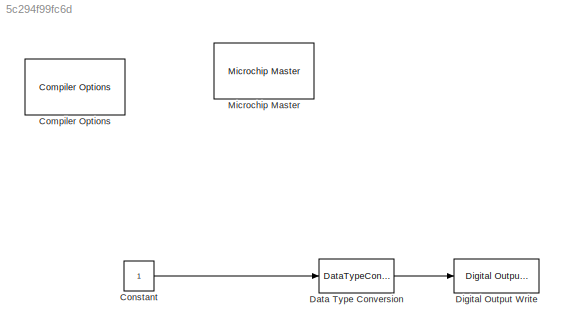
MODEL slx_5c294f99fc6d
KIND model
CONFIG AbsTol = auto
CONFIG EnableMultiTasking = off
CONFIG FixedStep = 0.001
CONFIG MaxStep = auto
CONFIG MinStep = auto
CONFIG RelTol = 1e-3
CONFIG SampleTimeConstraint = Unconstrained
CONFIG SolverName = FixedStepDiscrete
CONFIG StartTime = 0.0
CONFIG StopTime = 10.0
BLOCK [Reference] Compiler Options  REF=MCHP_Blockset/System Configuration/Compiler Options
  Priority = 1
  SourceBlock = MCHP_Blockset/System Configuration/Compiler Options
  SourceProductName = MPLAB Device Blocks for Simulink
BLOCK [Constant] Constant
  SampleTime = 0.001
BLOCK [DataTypeConversion] Data Type Conversion
  OutDataTypeStr = boolean
  RndMeth = Floor
  SaturateOnIntegerOverflow = off
BLOCK [Reference] Digital Output Write  REF=MCHP_Blockset/Digital IO/Digital Output
Write
  SourceBlock = MCHP_Blockset/Digital IO/Digital Output\nWrite
  SourceProductName = MPLAB Device Blocks for Simulink
  SourceType = Output driver for Digital Output Pins
BLOCK [Reference] Microchip Master  REF=MCHP_Blockset/System Configuration/Microchip Master
  Priority = 1
  SourceBlock = MCHP_Blockset/System Configuration/Microchip Master
  SourceProductName = MPLAB Device Blocks for Simulink
LINE Constant:1 -> Data Type Conversion:1
LINE Data Type Conversion:1 -> Digital Output Write:1
